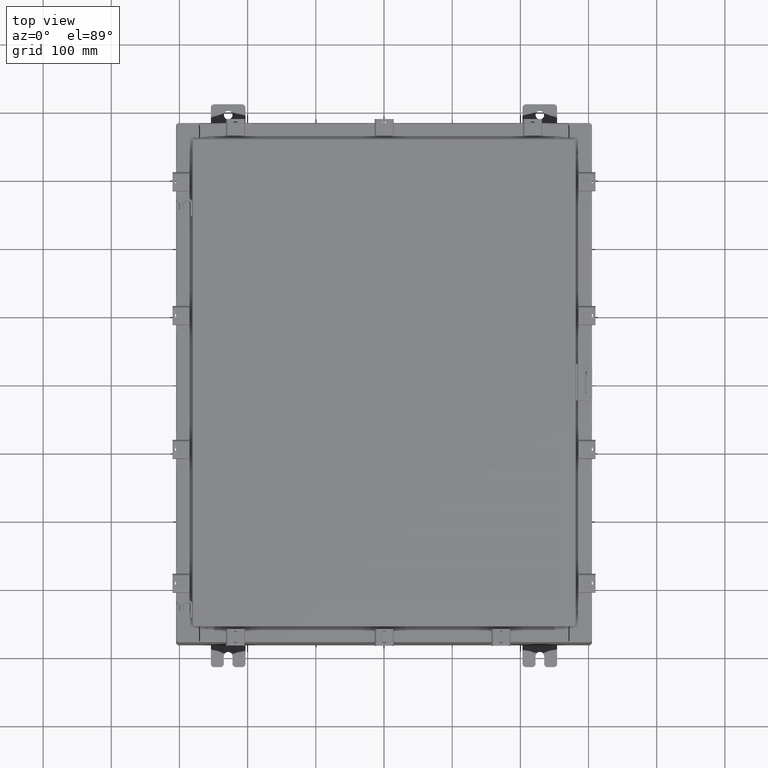
[diagram: clean part render]
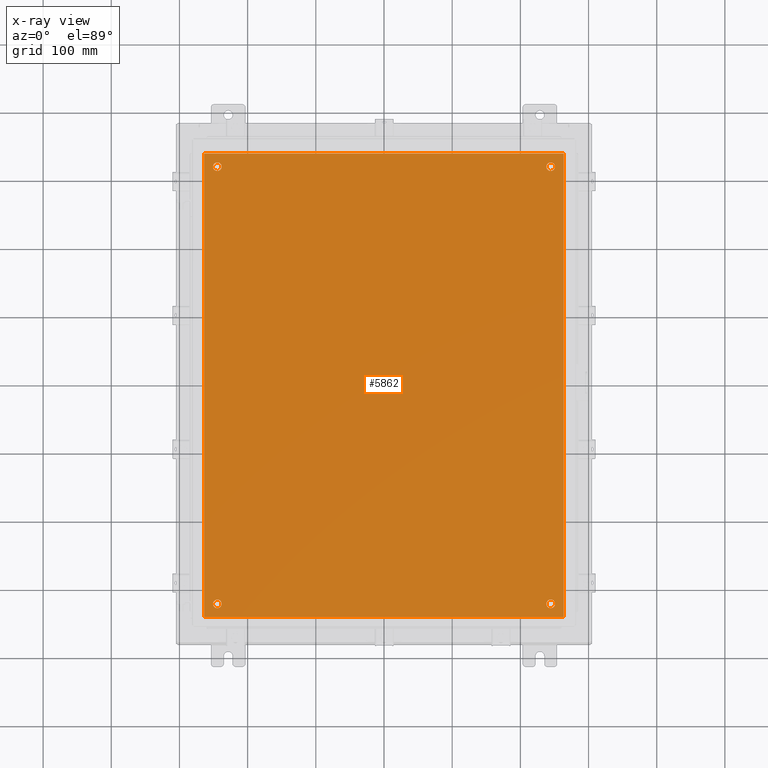
[diagram: x-ray — body ghosted, one internal face saturated and labeled with its STEP entity id]
A machine part, top view, then the same camera in x-ray: the body is ghosted and one INTERNAL B-rep face — a face not visible from any outside direction — is saturated and labeled: STEP entity #5862.
In plain terms, the highlighted planar face has unit normal (0, 0, -1).
Its self-contained STEP definition (entity closure, byte-faithful):
#47 = FACE_OUTER_BOUND ( 'NONE', #10686, .T. ) ;
#540 = CARTESIAN_POINT ( 'NONE',  ( 9.625000000000007100, 12.62500000000000000, -0.1039999999999999800 ) ) ;
#806 = VERTEX_POINT ( 'NONE', #19996 ) ;
#1159 = DIRECTION ( 'NONE',  ( -1.000000000000000000, 0.0000000000000000000, 0.0000000000000000000 ) ) ;
#1344 = DIRECTION ( 'NONE',  ( -1.000000000000000000, 0.0000000000000000000, 0.0000000000000000000 ) ) ;
#1428 = ORIENTED_EDGE ( 'NONE', *, *, #12065, .F. ) ;
#1777 = EDGE_CURVE ( 'NONE', #15033, #4417, #13832, .T. ) ;
#1786 = CIRCLE ( 'NONE', #5844, 0.2500000000000008900 ) ;
#1848 = LINE ( 'NONE', #16866, #20321 ) ;
#2074 = DIRECTION ( 'NONE',  ( -0.0000000000000000000, -0.0000000000000000000, 1.000000000000000000 ) ) ;
#2075 = CARTESIAN_POINT ( 'NONE',  ( 10.50000000000000400, 13.38299999999999900, -0.1040000000000009100 ) ) ;
#2344 = DIRECTION ( 'NONE',  ( -1.000000000000000000, 0.0000000000000000000, 0.0000000000000000000 ) ) ;
#2467 = EDGE_CURVE ( 'NONE', #3712, #806, #7934, .T. ) ;
#2662 = CARTESIAN_POINT ( 'NONE',  ( -9.625000000000007100, -12.62500000000000000, -0.1039999999999999800 ) ) ;
#3032 = EDGE_CURVE ( 'NONE', #14221, #3712, #1848, .T. ) ;
#3712 = VERTEX_POINT ( 'NONE', #18924 ) ;
#3868 = ORIENTED_EDGE ( 'NONE', *, *, #13517, .T. ) ;
#4241 = FACE_BOUND ( 'NONE', #6742, .T. ) ;
#4417 = VERTEX_POINT ( 'NONE', #15452 ) ;
#4449 = DIRECTION ( 'NONE',  ( -1.000000000000000000, 0.0000000000000000000, 0.0000000000000000000 ) ) ;
#4497 = ORIENTED_EDGE ( 'NONE', *, *, #1777, .T. ) ;
#4607 = EDGE_CURVE ( 'NONE', #19903, #12070, #1786, .T. ) ;
#4657 = DIRECTION ( 'NONE',  ( -0.0000000000000000000, -0.0000000000000000000, 1.000000000000000000 ) ) ;
#5506 = AXIS2_PLACEMENT_3D ( 'NONE', #540, #13039, #2344 ) ;
#5563 = DIRECTION ( 'NONE',  ( -1.000000000000000000, -0.0000000000000000000, -0.0000000000000000000 ) ) ;
#5660 = EDGE_CURVE ( 'NONE', #13172, #19525, #7587, .T. ) ;
#5709 = CARTESIAN_POINT ( 'NONE',  ( 9.375000000000007100, -12.62500000000000000, -0.1039999999999999800 ) ) ;
#5844 = AXIS2_PLACEMENT_3D ( 'NONE', #12756, #2074, #14549 ) ;
#5862 = ADVANCED_FACE ( 'NONE', ( #18515, #13740, #8974, #4241, #47 ), #17807, .T. ) ;
#5954 = ORIENTED_EDGE ( 'NONE', *, *, #5660, .T. ) ;
#6074 = VERTEX_POINT ( 'NONE', #9357 ) ;
#6157 = ORIENTED_EDGE ( 'NONE', *, *, #10758, .T. ) ;
#6172 = DIRECTION ( 'NONE',  ( 0.0000000000000000000, 1.000000000000000000, 0.0000000000000000000 ) ) ;
#6543 = DIRECTION ( 'NONE',  ( 1.000000000000000000, -0.0000000000000000000, -0.0000000000000000000 ) ) ;
#6742 = EDGE_LOOP ( 'NONE', ( #6157, #17711 ) ) ;
#6847 = CIRCLE ( 'NONE', #11161, 0.2500000000000008900 ) ;
#7014 = CARTESIAN_POINT ( 'NONE',  ( 0.0000000000000000000, 0.0000000000000000000, -0.1039999999999999800 ) ) ;
#7028 = AXIS2_PLACEMENT_3D ( 'NONE', #22782, #12067, #1344 ) ;
#7102 = DIRECTION ( 'NONE',  ( 0.0000000000000000000, 0.0000000000000000000, -1.000000000000000000 ) ) ;
#7385 = VECTOR ( 'NONE', #5563, 39.37007874015748100 ) ;
#7587 = CIRCLE ( 'NONE', #16741, 0.2499999999999998100 ) ;
#7591 = CIRCLE ( 'NONE', #16981, 0.2500000000000008900 ) ;
#7934 = LINE ( 'NONE', #2075, #7385 ) ;
#8119 = VECTOR ( 'NONE', #6543, 39.37007874015748100 ) ;
#8404 = DIRECTION ( 'NONE',  ( -0.0000000000000000000, -0.0000000000000000000, 1.000000000000000000 ) ) ;
#8682 = LINE ( 'NONE', #20855, #8119 ) ;
#8974 = FACE_BOUND ( 'NONE', #21338, .T. ) ;
#8994 = EDGE_LOOP ( 'NONE', ( #10956, #19042 ) ) ;
#9357 = CARTESIAN_POINT ( 'NONE',  ( -9.375000000000007100, -12.62500000000000000, -0.1039999999999999800 ) ) ;
#9632 = ORIENTED_EDGE ( 'NONE', *, *, #3032, .F. ) ;
#9736 = ORIENTED_EDGE ( 'NONE', *, *, #2467, .F. ) ;
#10399 = CARTESIAN_POINT ( 'NONE',  ( -9.625000000000007100, -12.62500000000000000, -0.1039999999999999800 ) ) ;
#10482 = CARTESIAN_POINT ( 'NONE',  ( 10.38300000000000100, -13.38299999999999700, -0.1040000000000009100 ) ) ;
#10686 = EDGE_LOOP ( 'NONE', ( #1428, #15909, #9736, #9632 ) ) ;
#10735 = DIRECTION ( 'NONE',  ( 0.0000000000000000000, -1.000000000000000000, 0.0000000000000000000 ) ) ;
#10749 = VERTEX_POINT ( 'NONE', #11702 ) ;
#10758 = EDGE_CURVE ( 'NONE', #12070, #19903, #22195, .T. ) ;
#10864 = CIRCLE ( 'NONE', #18963, 0.2499999999999998100 ) ;
#10956 = ORIENTED_EDGE ( 'NONE', *, *, #11592, .T. ) ;
#11022 = CARTESIAN_POINT ( 'NONE',  ( -10.38300000000000100, -13.38299999999999900, -0.1040000000000009100 ) ) ;
#11148 = AXIS2_PLACEMENT_3D ( 'NONE', #15343, #4657, #17156 ) ;
#11161 = AXIS2_PLACEMENT_3D ( 'NONE', #2662, #15149, #4449 ) ;
#11592 = EDGE_CURVE ( 'NONE', #6074, #10749, #7591, .T. ) ;
#11702 = CARTESIAN_POINT ( 'NONE',  ( -9.875000000000007100, -12.62500000000000000, -0.1039999999999999800 ) ) ;
#11885 = DIRECTION ( 'NONE',  ( -0.0000000000000000000, -0.0000000000000000000, 1.000000000000000000 ) ) ;
#11931 = CARTESIAN_POINT ( 'NONE',  ( -9.375000000000007100, 12.62500000000000000, -0.1039999999999999800 ) ) ;
#12065 = EDGE_CURVE ( 'NONE', #20252, #14221, #8682, .T. ) ;
#12067 = DIRECTION ( 'NONE',  ( -0.0000000000000000000, -0.0000000000000000000, 1.000000000000000000 ) ) ;
#12070 = VERTEX_POINT ( 'NONE', #11931 ) ;
#12217 = DIRECTION ( 'NONE',  ( -1.000000000000000000, 0.0000000000000000000, 0.0000000000000000000 ) ) ;
#12305 = EDGE_CURVE ( 'NONE', #806, #20252, #13158, .T. ) ;
#12726 = AXIS2_PLACEMENT_3D ( 'NONE', #7014, #7102, #19614 ) ;
#12756 = CARTESIAN_POINT ( 'NONE',  ( -9.625000000000007100, 12.62500000000000000, -0.1039999999999999800 ) ) ;
#13039 = DIRECTION ( 'NONE',  ( -0.0000000000000000000, -0.0000000000000000000, 1.000000000000000000 ) ) ;
#13158 = LINE ( 'NONE', #19677, #18494 ) ;
#13172 = VERTEX_POINT ( 'NONE', #5709 ) ;
#13517 = EDGE_CURVE ( 'NONE', #4417, #15033, #10864, .T. ) ;
#13740 = FACE_BOUND ( 'NONE', #22071, .T. ) ;
#13832 = CIRCLE ( 'NONE', #5506, 0.2499999999999998100 ) ;
#13889 = ORIENTED_EDGE ( 'NONE', *, *, #18192, .T. ) ;
#14221 = VERTEX_POINT ( 'NONE', #10482 ) ;
#14359 = CARTESIAN_POINT ( 'NONE',  ( 9.875000000000007100, 12.62500000000000000, -0.1039999999999999800 ) ) ;
#14549 = DIRECTION ( 'NONE',  ( -1.000000000000000000, 0.0000000000000000000, 0.0000000000000000000 ) ) ;
#14659 = EDGE_CURVE ( 'NONE', #10749, #6074, #6847, .T. ) ;
#15033 = VERTEX_POINT ( 'NONE', #14359 ) ;
#15149 = DIRECTION ( 'NONE',  ( -0.0000000000000000000, -0.0000000000000000000, 1.000000000000000000 ) ) ;
#15343 = CARTESIAN_POINT ( 'NONE',  ( -9.625000000000007100, 12.62500000000000000, -0.1039999999999999800 ) ) ;
#15452 = CARTESIAN_POINT ( 'NONE',  ( 9.375000000000007100, 12.62500000000000000, -0.1039999999999999800 ) ) ;
#15909 = ORIENTED_EDGE ( 'NONE', *, *, #12305, .F. ) ;
#16741 = AXIS2_PLACEMENT_3D ( 'NONE', #22579, #11885, #1159 ) ;
#16866 = CARTESIAN_POINT ( 'NONE',  ( 10.38300000000000100, -13.38299999999999700, -0.1040000000000009100 ) ) ;
#16981 = AXIS2_PLACEMENT_3D ( 'NONE', #10399, #22914, #12217 ) ;
#17156 = DIRECTION ( 'NONE',  ( -1.000000000000000000, 0.0000000000000000000, 0.0000000000000000000 ) ) ;
#17230 = CARTESIAN_POINT ( 'NONE',  ( 9.875000000000007100, -12.62500000000000000, -0.1039999999999999800 ) ) ;
#17711 = ORIENTED_EDGE ( 'NONE', *, *, #4607, .T. ) ;
#17807 = PLANE ( 'NONE',  #12726 ) ;
#18192 = EDGE_CURVE ( 'NONE', #19525, #13172, #21562, .T. ) ;
#18494 = VECTOR ( 'NONE', #10735, 39.37007874015748100 ) ;
#18515 = FACE_BOUND ( 'NONE', #8994, .T. ) ;
#18878 = CARTESIAN_POINT ( 'NONE',  ( -9.875000000000007100, 12.62500000000000000, -0.1039999999999999800 ) ) ;
#18924 = CARTESIAN_POINT ( 'NONE',  ( 10.38300000000000100, 13.38299999999999700, -0.1040000000000009100 ) ) ;
#18963 = AXIS2_PLACEMENT_3D ( 'NONE', #19153, #8404, #20934 ) ;
#19042 = ORIENTED_EDGE ( 'NONE', *, *, #14659, .T. ) ;
#19153 = CARTESIAN_POINT ( 'NONE',  ( 9.625000000000007100, 12.62500000000000000, -0.1039999999999999800 ) ) ;
#19525 = VERTEX_POINT ( 'NONE', #17230 ) ;
#19614 = DIRECTION ( 'NONE',  ( -1.000000000000000000, 0.0000000000000000000, -0.0000000000000000000 ) ) ;
#19677 = CARTESIAN_POINT ( 'NONE',  ( -10.38300000000000100, 13.38299999999999700, -0.1040000000000020100 ) ) ;
#19903 = VERTEX_POINT ( 'NONE', #18878 ) ;
#19996 = CARTESIAN_POINT ( 'NONE',  ( -10.38300000000000100, 13.38299999999999700, -0.1040000000000020100 ) ) ;
#20252 = VERTEX_POINT ( 'NONE', #11022 ) ;
#20321 = VECTOR ( 'NONE', #6172, 39.37007874015748100 ) ;
#20855 = CARTESIAN_POINT ( 'NONE',  ( -10.50000000000000200, -13.38299999999999900, -0.1040000000000009100 ) ) ;
#20934 = DIRECTION ( 'NONE',  ( -1.000000000000000000, 0.0000000000000000000, 0.0000000000000000000 ) ) ;
#21338 = EDGE_LOOP ( 'NONE', ( #4497, #3868 ) ) ;
#21562 = CIRCLE ( 'NONE', #7028, 0.2499999999999998100 ) ;
#22071 = EDGE_LOOP ( 'NONE', ( #13889, #5954 ) ) ;
#22195 = CIRCLE ( 'NONE', #11148, 0.2500000000000008900 ) ;
#22579 = CARTESIAN_POINT ( 'NONE',  ( 9.625000000000007100, -12.62500000000000000, -0.1039999999999999800 ) ) ;
#22782 = CARTESIAN_POINT ( 'NONE',  ( 9.625000000000007100, -12.62500000000000000, -0.1039999999999999800 ) ) ;
#22914 = DIRECTION ( 'NONE',  ( -0.0000000000000000000, -0.0000000000000000000, 1.000000000000000000 ) ) ;